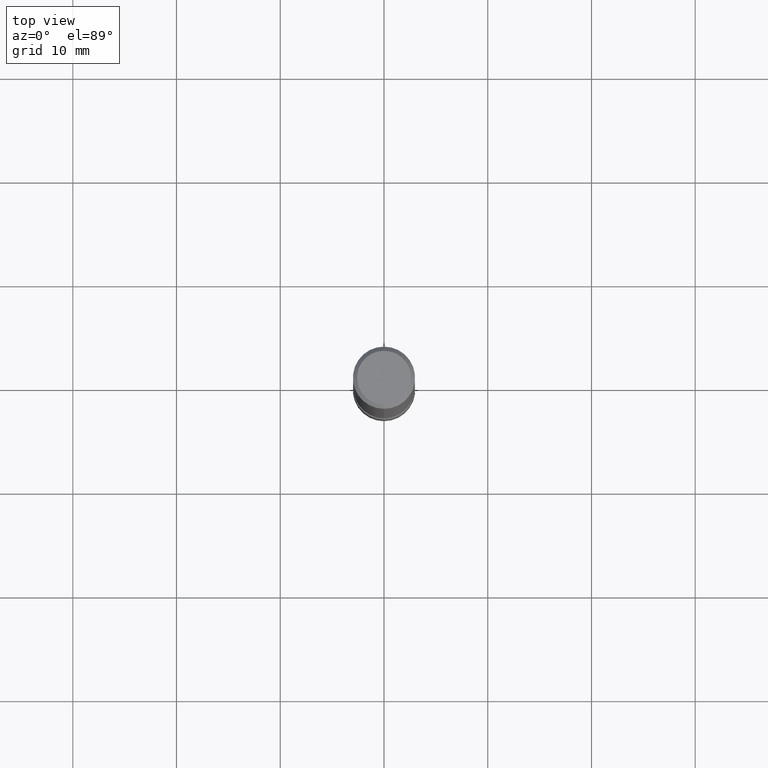
[diagram: clean part render]
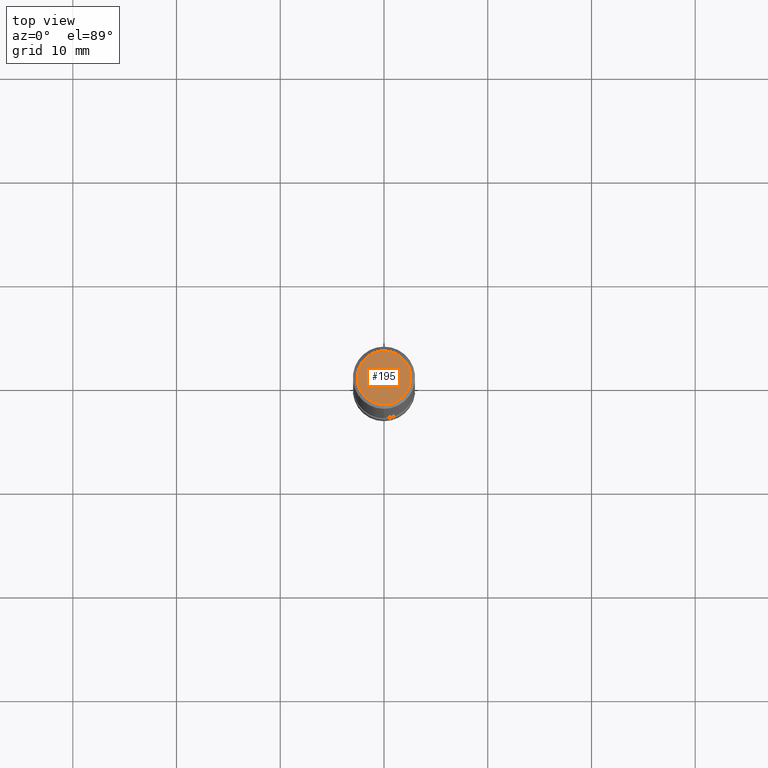
[diagram: same view with one face highlighted and labeled with its STEP entity id]
A machine part, top view. The second image highlights one B-rep face of the part: STEP entity #195.
In plain terms, the highlighted planar face has unit normal (-0, 0, 1).
Its self-contained STEP definition (entity closure, byte-faithful):
#169=VERTEX_POINT('',#365);
#195=ADVANCED_FACE('',(#395),#396,.T.);
#211=VERTEX_POINT('',#415);
#213=EDGE_CURVE('',#211,#169,#417,.T.);
#283=EDGE_CURVE('',#169,#211,#494,.T.);
#365=CARTESIAN_POINT('',(0.0,2.6,0.0));
#395=FACE_OUTER_BOUND('',#624,.T.);
#396=PLANE('',#625);
#415=CARTESIAN_POINT('',(3.18397651993818E-016,-2.6,0.0));
#417=CIRCLE('',#650,2.6);
#494=CIRCLE('',#745,2.6);
#624=EDGE_LOOP('',(#879,#880));
#625=AXIS2_PLACEMENT_3D('',#881,#882,#883);
#650=AXIS2_PLACEMENT_3D('',#904,#905,#906);
#745=AXIS2_PLACEMENT_3D('',#992,#993,#994);
#879=ORIENTED_EDGE('',*,*,#283,.F.);
#880=ORIENTED_EDGE('',*,*,#213,.F.);
#881=CARTESIAN_POINT('',(0.0,1.3,0.0));
#882=DIRECTION('',(-0.0,0.0,1.0));
#883=DIRECTION('',(0.0,-1.0,0.0));
#904=CARTESIAN_POINT('',(0.0,0.0,0.0));
#905=DIRECTION('',(0.0,0.0,-1.0));
#906=DIRECTION('',(0.0,1.0,0.0));
#992=CARTESIAN_POINT('',(0.0,0.0,0.0));
#993=DIRECTION('',(0.0,0.0,-1.0));
#994=DIRECTION('',(0.0,1.0,0.0));